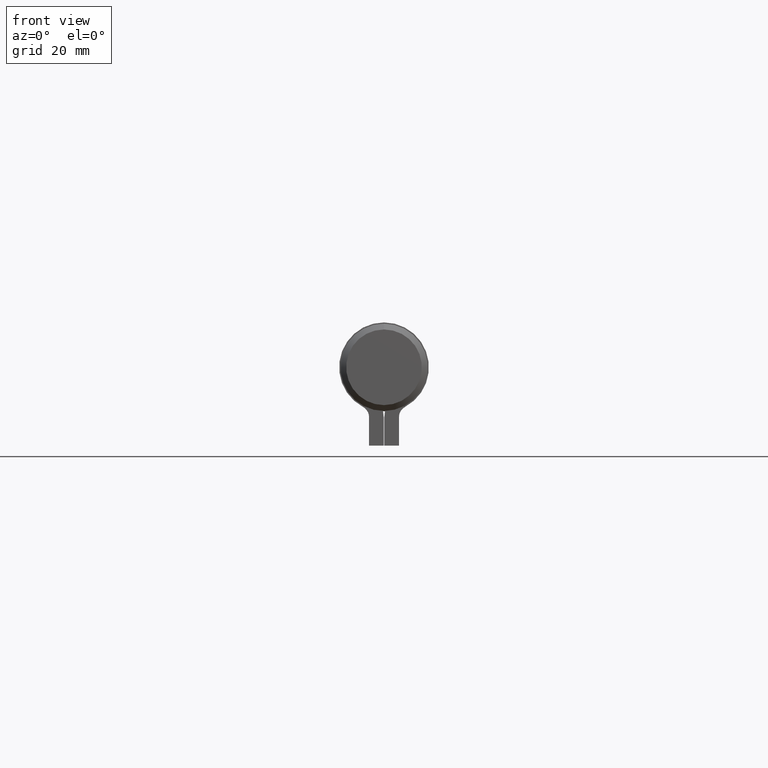
[diagram: clean part render]
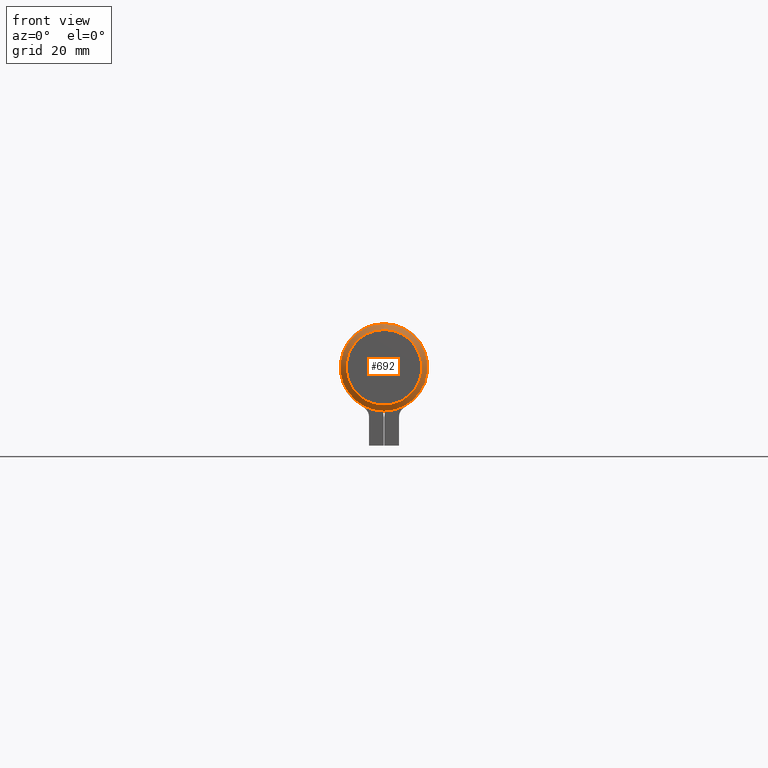
[diagram: same view with one face highlighted and labeled with its STEP entity id]
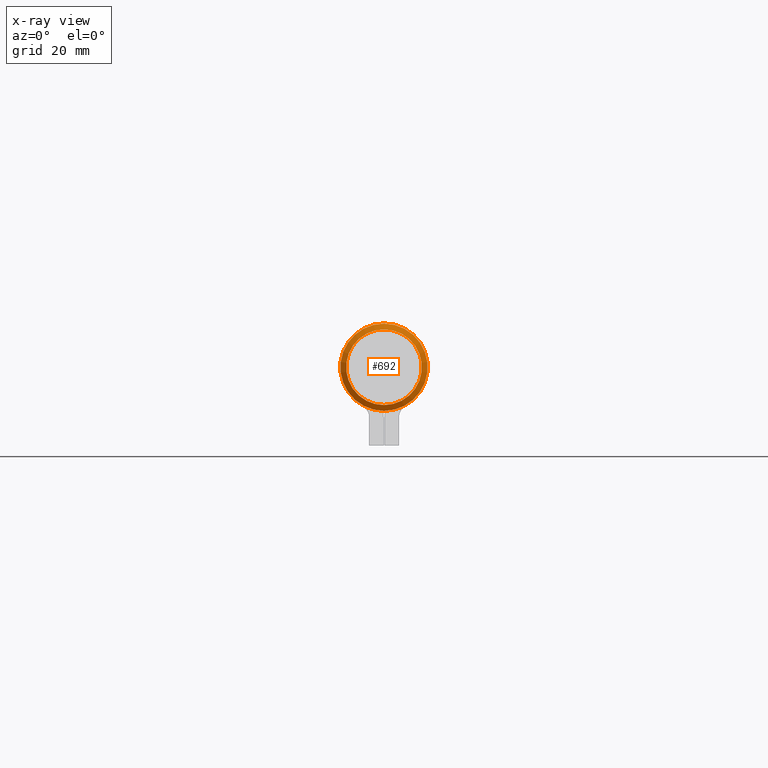
[diagram: x-ray of the same camera — body ghosted, the highlighted face saturated]
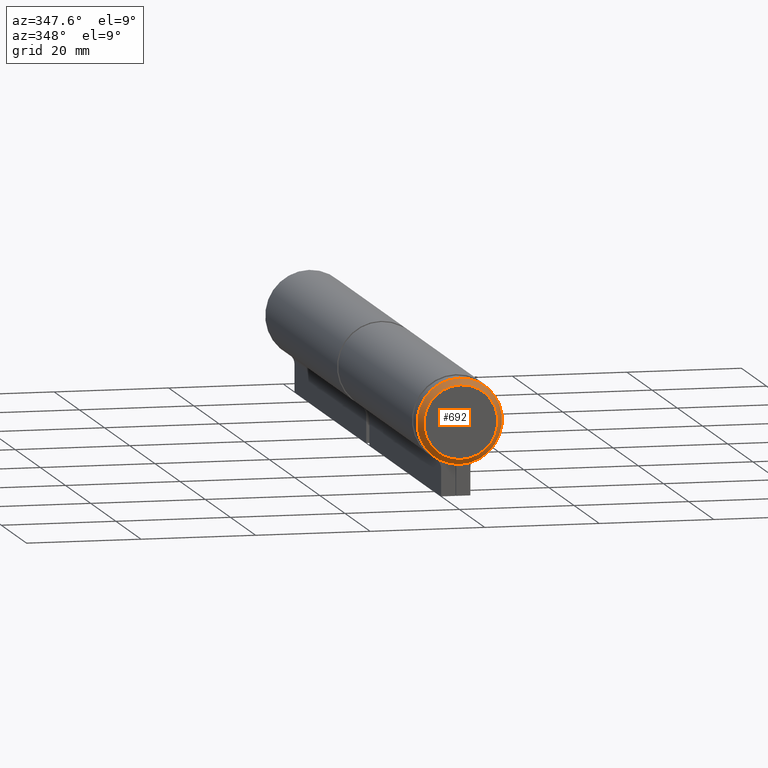
[diagram: same view with one face highlighted and labeled with its STEP entity id]
A machine part, front view. The second image highlights one B-rep face of the part: STEP entity #692.
The next image is the same camera in x-ray: the body ghosted, the highlighted face saturated — about 0% of this face is hidden behind the body in this view.
A second angle (auxiliary view) of the same face is appended — the face is thin or edge-on in the first view.
In plain terms, the highlighted conical surface has half-angle 45 deg.
Its self-contained STEP definition (entity closure, byte-faithful):
#306 = DIRECTION ( 'NONE',  ( 0.000000000000000000, 0.000000000000000000, 1.000000000000000000 ) ) ;
#692 = ADVANCED_FACE ( 'NONE', ( #13846, #4198 ), #802, .T. ) ;
#802 = CONICAL_SURFACE ( 'NONE', #5300, 7.450000000000000178, 0.7853981633974560506 ) ;
#1225 = EDGE_CURVE ( 'NONE', #5538, #5538, #8083, .T. ) ;
#1977 = CARTESIAN_POINT ( 'NONE',  ( 1.387778780781445676E-14, -61.00000000000000000, 0.000000000000000000 ) ) ;
#2932 = DIRECTION ( 'NONE',  ( 0.000000000000000000, 0.000000000000000000, 1.000000000000000000 ) ) ;
#3367 = VERTEX_POINT ( 'NONE', #11093 ) ;
#4198 = FACE_OUTER_BOUND ( 'NONE', #7143, .T. ) ;
#4516 = CIRCLE ( 'NONE', #13912, 7.450000000000000178 ) ;
#5007 = EDGE_CURVE ( 'NONE', #3367, #3367, #4516, .T. ) ;
#5300 = AXIS2_PLACEMENT_3D ( 'NONE', #12486, #6033, #2932 ) ;
#5538 = VERTEX_POINT ( 'NONE', #12181 ) ;
#5626 = DIRECTION ( 'NONE',  ( -0.000000000000000000, 1.000000000000000000, -0.000000000000000000 ) ) ;
#6033 = DIRECTION ( 'NONE',  ( -0.000000000000000000, 1.000000000000000000, -0.000000000000000000 ) ) ;
#7143 = EDGE_LOOP ( 'NONE', ( #10182 ) ) ;
#8083 = CIRCLE ( 'NONE', #12140, 6.449999999999955769 ) ;
#8429 = ORIENTED_EDGE ( 'NONE', *, *, #1225, .F. ) ;
#8975 = CARTESIAN_POINT ( 'NONE',  ( 1.387778780781445676E-14, -59.99999999999997158, 0.000000000000000000 ) ) ;
#10182 = ORIENTED_EDGE ( 'NONE', *, *, #5007, .F. ) ;
#10533 = DIRECTION ( 'NONE',  ( 0.000000000000000000, 0.000000000000000000, 1.000000000000000000 ) ) ;
#10581 = DIRECTION ( 'NONE',  ( 0.000000000000000000, -1.000000000000000000, 0.000000000000000000 ) ) ;
#11093 = CARTESIAN_POINT ( 'NONE',  ( 1.387778780781445676E-14, -59.99999999999997158, 7.450000000000000178 ) ) ;
#12140 = AXIS2_PLACEMENT_3D ( 'NONE', #1977, #10581, #10533 ) ;
#12181 = CARTESIAN_POINT ( 'NONE',  ( 1.387778780781445676E-14, -61.00000000000000000, 6.449999999999955769 ) ) ;
#12486 = CARTESIAN_POINT ( 'NONE',  ( 1.387778780781445676E-14, -59.99999999999997158, 0.000000000000000000 ) ) ;
#12727 = EDGE_LOOP ( 'NONE', ( #8429 ) ) ;
#13846 = FACE_BOUND ( 'NONE', #12727, .T. ) ;
#13912 = AXIS2_PLACEMENT_3D ( 'NONE', #8975, #5626, #306 ) ;